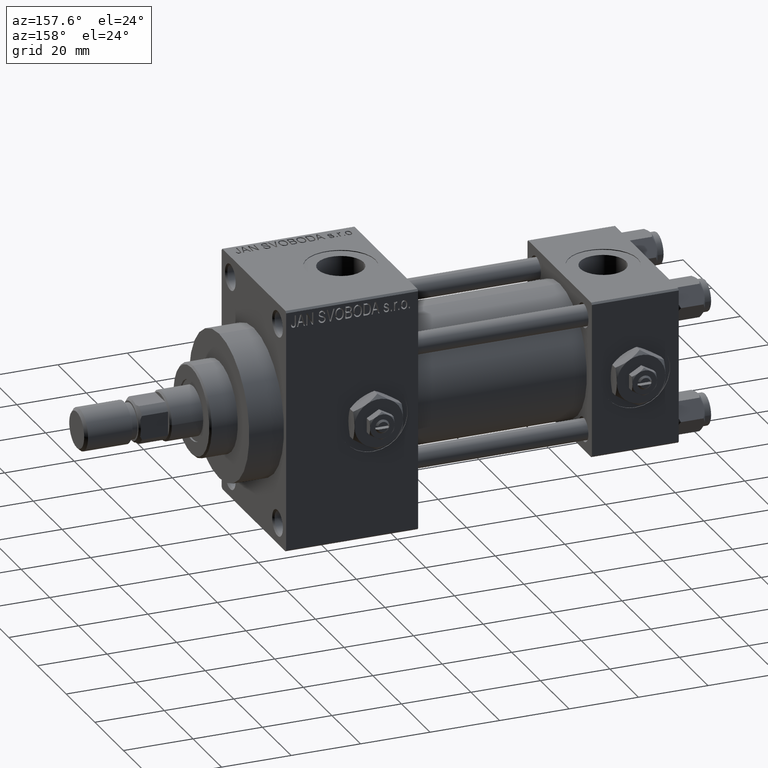
[diagram: clean part render]
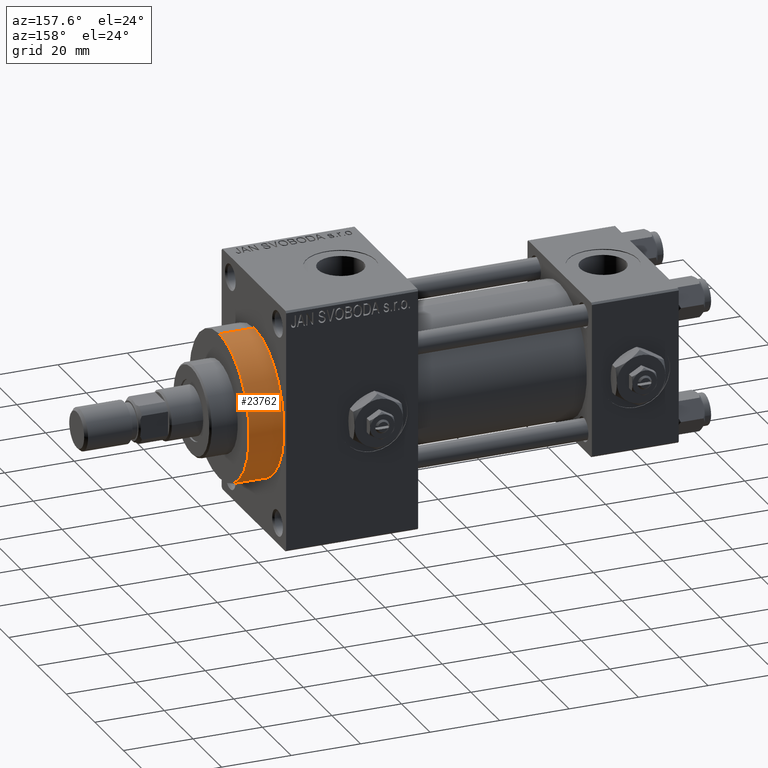
[diagram: same view with one face highlighted and labeled with its STEP entity id]
A machine part, auxiliary view. The second image highlights one B-rep face of the part: STEP entity #23762.
In plain terms, the highlighted cylindrical surface (partial cylindrical patch) has radius 21 mm, axis along (-1, -0, -0).
Its self-contained STEP definition (entity closure, byte-faithful):
#1329 = CIRCLE ( 'NONE', #37344, 21.00000000000000000 ) ;
#3490 = DIRECTION ( 'NONE',  ( -1.000000000000000000, -0.000000000000000000, -0.000000000000000000 ) ) ;
#3663 = LINE ( 'NONE', #26472, #22720 ) ;
#3725 = VERTEX_POINT ( 'NONE', #12830 ) ;
#4596 = CARTESIAN_POINT ( 'NONE',  ( 123.0000000000000142, 0.000000000000000000, 21.00000000000000000 ) ) ;
#4735 = EDGE_CURVE ( 'NONE', #3725, #38180, #3663, .T. ) ;
#5004 = DIRECTION ( 'NONE',  ( 0.000000000000000000, 0.000000000000000000, 1.000000000000000000 ) ) ;
#6918 = EDGE_LOOP ( 'NONE', ( #32999, #21107, #9478, #8567 ) ) ;
#7137 = EDGE_CURVE ( 'NONE', #42255, #41880, #22552, .T. ) ;
#8567 = ORIENTED_EDGE ( 'NONE', *, *, #7137, .F. ) ;
#9478 = ORIENTED_EDGE ( 'NONE', *, *, #23931, .T. ) ;
#11352 = CYLINDRICAL_SURFACE ( 'NONE', #36954, 21.00000000000000000 ) ;
#12830 = CARTESIAN_POINT ( 'NONE',  ( 123.0000000000000142, 2.571758278209441661E-15, -21.00000000000000000 ) ) ;
#13430 = DIRECTION ( 'NONE',  ( 1.000000000000000000, 0.000000000000000000, 0.000000000000000000 ) ) ;
#20306 = DIRECTION ( 'NONE',  ( -1.000000000000000000, -0.000000000000000000, -0.000000000000000000 ) ) ;
#21107 = ORIENTED_EDGE ( 'NONE', *, *, #4735, .T. ) ;
#21621 = CARTESIAN_POINT ( 'NONE',  ( 113.0000000000000142, 2.571758278209441661E-15, -21.00000000000000000 ) ) ;
#22552 = LINE ( 'NONE', #37825, #26004 ) ;
#22720 = VECTOR ( 'NONE', #41275, 1000.000000000000000 ) ;
#23762 = ADVANCED_FACE ( 'NONE', ( #45687 ), #11352, .T. ) ;
#23931 = EDGE_CURVE ( 'NONE', #38180, #41880, #31339, .T. ) ;
#24922 = AXIS2_PLACEMENT_3D ( 'NONE', #32329, #47603, #28562 ) ;
#26004 = VECTOR ( 'NONE', #3490, 1000.000000000000000 ) ;
#26472 = CARTESIAN_POINT ( 'NONE',  ( 123.0000000000000142, 2.571758278209441661E-15, -21.00000000000000000 ) ) ;
#27818 = CARTESIAN_POINT ( 'NONE',  ( 123.0000000000000142, 0.000000000000000000, 0.000000000000000000 ) ) ;
#27970 = DIRECTION ( 'NONE',  ( 0.000000000000000000, 0.000000000000000000, -1.000000000000000000 ) ) ;
#28214 = CARTESIAN_POINT ( 'NONE',  ( 113.0000000000000142, 0.000000000000000000, 21.00000000000000000 ) ) ;
#28562 = DIRECTION ( 'NONE',  ( 0.000000000000000000, 0.000000000000000000, -1.000000000000000000 ) ) ;
#31339 = CIRCLE ( 'NONE', #24922, 21.00000000000000000 ) ;
#32329 = CARTESIAN_POINT ( 'NONE',  ( 113.0000000000000142, 0.000000000000000000, 0.000000000000000000 ) ) ;
#32999 = ORIENTED_EDGE ( 'NONE', *, *, #41992, .F. ) ;
#36954 = AXIS2_PLACEMENT_3D ( 'NONE', #27818, #20306, #5004 ) ;
#37344 = AXIS2_PLACEMENT_3D ( 'NONE', #47751, #13430, #27970 ) ;
#37825 = CARTESIAN_POINT ( 'NONE',  ( 123.0000000000000142, 0.000000000000000000, 21.00000000000000000 ) ) ;
#38180 = VERTEX_POINT ( 'NONE', #21621 ) ;
#41275 = DIRECTION ( 'NONE',  ( -1.000000000000000000, -0.000000000000000000, -0.000000000000000000 ) ) ;
#41880 = VERTEX_POINT ( 'NONE', #28214 ) ;
#41992 = EDGE_CURVE ( 'NONE', #3725, #42255, #1329, .T. ) ;
#42255 = VERTEX_POINT ( 'NONE', #4596 ) ;
#45687 = FACE_OUTER_BOUND ( 'NONE', #6918, .T. ) ;
#47603 = DIRECTION ( 'NONE',  ( 1.000000000000000000, 0.000000000000000000, 0.000000000000000000 ) ) ;
#47751 = CARTESIAN_POINT ( 'NONE',  ( 123.0000000000000142, 0.000000000000000000, 0.000000000000000000 ) ) ;